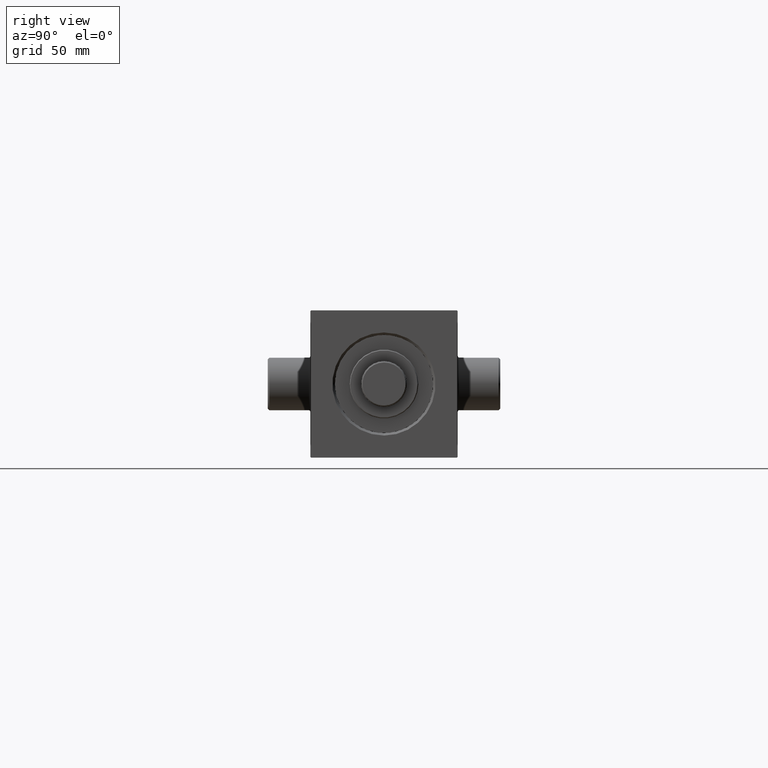
[diagram: clean part render]
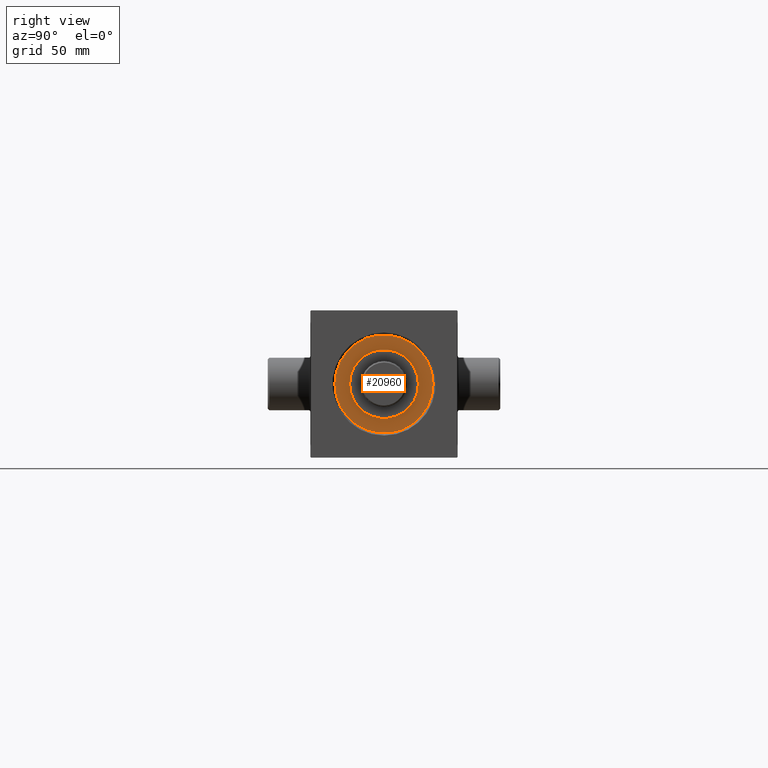
[diagram: same view with one face highlighted and labeled with its STEP entity id]
A machine part, right view. The second image highlights one B-rep face of the part: STEP entity #20960.
In plain terms, the highlighted planar face has unit normal (1, 0, 0).
Its self-contained STEP definition (entity closure, byte-faithful):
#200 = EDGE_CURVE ( 'NONE', #24330, #3208, #12466, .T. ) ;
#2444 = CARTESIAN_POINT ( 'NONE',  ( 0.000000000000000000, 0.000000000000000000, 26.69999999999999929 ) ) ;
#3208 = VERTEX_POINT ( 'NONE', #26391 ) ;
#4147 = VERTEX_POINT ( 'NONE', #22891 ) ;
#4625 = FACE_BOUND ( 'NONE', #20899, .T. ) ;
#4927 = CARTESIAN_POINT ( 'NONE',  ( 0.000000000000000000, 0.000000000000000000, 26.69999999999999929 ) ) ;
#6994 = EDGE_CURVE ( 'NONE', #3208, #24330, #30774, .T. ) ;
#7676 = EDGE_LOOP ( 'NONE', ( #31314, #31339 ) ) ;
#8676 = EDGE_CURVE ( 'NONE', #30647, #4147, #32330, .T. ) ;
#8820 = EDGE_CURVE ( 'NONE', #4147, #30647, #11166, .T. ) ;
#9194 = CARTESIAN_POINT ( 'NONE',  ( 0.000000000000000000, 0.000000000000000000, 26.69999999999999929 ) ) ;
#11166 = CIRCLE ( 'NONE', #33816, 30.00000000000000000 ) ;
#12466 = CIRCLE ( 'NONE', #45650, 21.00000000000000000 ) ;
#14948 = AXIS2_PLACEMENT_3D ( 'NONE', #2444, #30599, #23499 ) ;
#16059 = DIRECTION ( 'NONE',  ( 1.000000000000000000, 0.000000000000000000, 0.000000000000000000 ) ) ;
#16448 = PLANE ( 'NONE',  #35553 ) ;
#20899 = EDGE_LOOP ( 'NONE', ( #29877, #22738 ) ) ;
#20960 = ADVANCED_FACE ( 'NONE', ( #4625, #26609 ), #16448, .T. ) ;
#22738 = ORIENTED_EDGE ( 'NONE', *, *, #200, .F. ) ;
#22891 = CARTESIAN_POINT ( 'NONE',  ( 30.00000000000000000, 3.673940397442059178E-15, 26.69999999999999929 ) ) ;
#23499 = DIRECTION ( 'NONE',  ( 1.000000000000000000, 0.000000000000000000, 0.000000000000000000 ) ) ;
#24330 = VERTEX_POINT ( 'NONE', #46463 ) ;
#24896 = DIRECTION ( 'NONE',  ( 1.000000000000000000, 0.000000000000000000, 0.000000000000000000 ) ) ;
#25132 = CARTESIAN_POINT ( 'NONE',  ( 0.000000000000000000, 0.000000000000000000, 26.69999999999999929 ) ) ;
#26391 = CARTESIAN_POINT ( 'NONE',  ( -21.00000000000000000, 0.000000000000000000, 26.69999999999999929 ) ) ;
#26609 = FACE_OUTER_BOUND ( 'NONE', #7676, .T. ) ;
#26834 = DIRECTION ( 'NONE',  ( 0.000000000000000000, 0.000000000000000000, 1.000000000000000000 ) ) ;
#26998 = CARTESIAN_POINT ( 'NONE',  ( -30.00000000000000000, 0.000000000000000000, 26.69999999999999929 ) ) ;
#29877 = ORIENTED_EDGE ( 'NONE', *, *, #6994, .F. ) ;
#30599 = DIRECTION ( 'NONE',  ( 0.000000000000000000, 0.000000000000000000, 1.000000000000000000 ) ) ;
#30647 = VERTEX_POINT ( 'NONE', #26998 ) ;
#30703 = DIRECTION ( 'NONE',  ( 0.000000000000000000, 0.000000000000000000, 1.000000000000000000 ) ) ;
#30774 = CIRCLE ( 'NONE', #33043, 21.00000000000000000 ) ;
#30866 = CARTESIAN_POINT ( 'NONE',  ( 0.000000000000000000, 0.000000000000000000, 26.69999999999999929 ) ) ;
#31178 = DIRECTION ( 'NONE',  ( 1.000000000000000000, 0.000000000000000000, 0.000000000000000000 ) ) ;
#31314 = ORIENTED_EDGE ( 'NONE', *, *, #8676, .T. ) ;
#31339 = ORIENTED_EDGE ( 'NONE', *, *, #8820, .T. ) ;
#32330 = CIRCLE ( 'NONE', #14948, 30.00000000000000000 ) ;
#33043 = AXIS2_PLACEMENT_3D ( 'NONE', #4927, #33330, #16059 ) ;
#33330 = DIRECTION ( 'NONE',  ( 0.000000000000000000, 0.000000000000000000, 1.000000000000000000 ) ) ;
#33816 = AXIS2_PLACEMENT_3D ( 'NONE', #25132, #39091, #24896 ) ;
#35553 = AXIS2_PLACEMENT_3D ( 'NONE', #30866, #26834, #45265 ) ;
#39091 = DIRECTION ( 'NONE',  ( 0.000000000000000000, 0.000000000000000000, 1.000000000000000000 ) ) ;
#45265 = DIRECTION ( 'NONE',  ( 1.000000000000000000, 0.000000000000000000, -0.000000000000000000 ) ) ;
#45650 = AXIS2_PLACEMENT_3D ( 'NONE', #9194, #30703, #31178 ) ;
#46463 = CARTESIAN_POINT ( 'NONE',  ( 21.00000000000000000, 2.571758278209441661E-15, 26.69999999999999929 ) ) ;